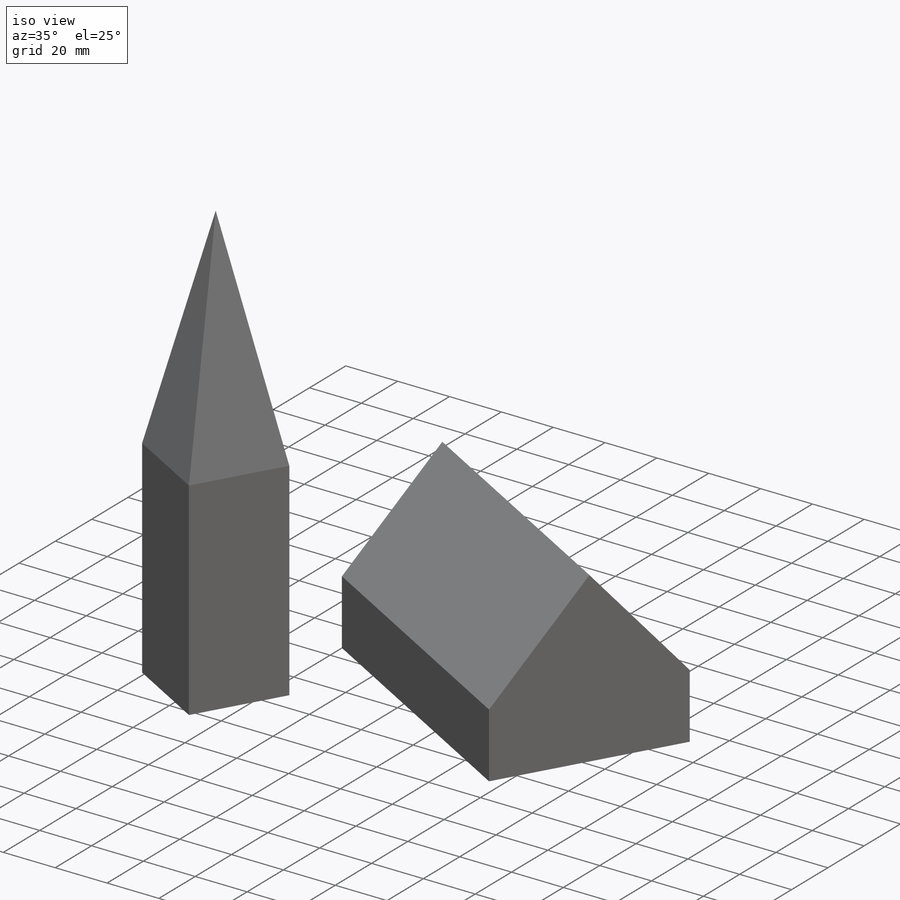
[diagram: iso view]
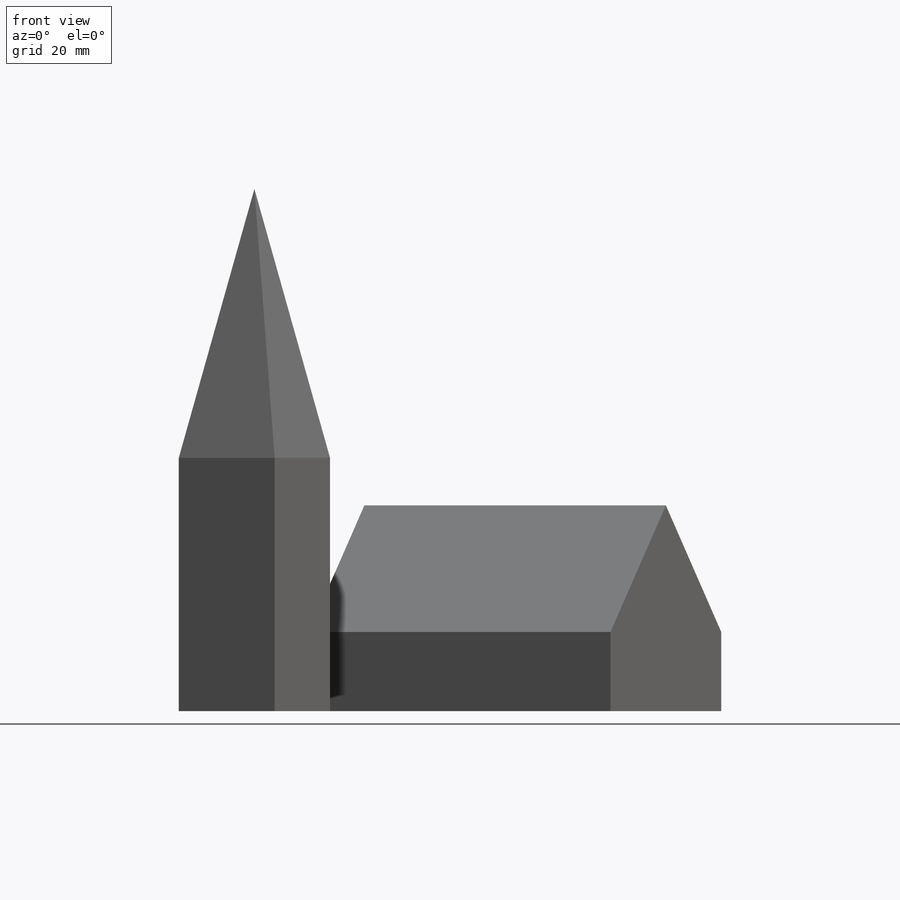
[diagram: front view]
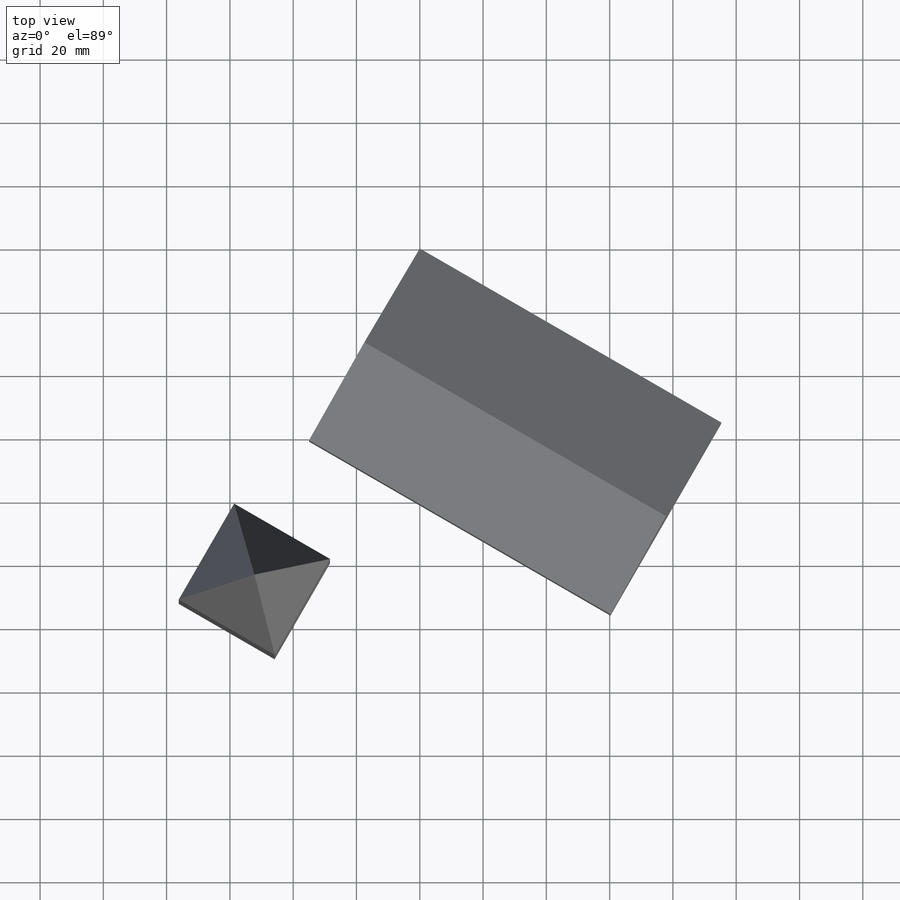
[diagram: top view]
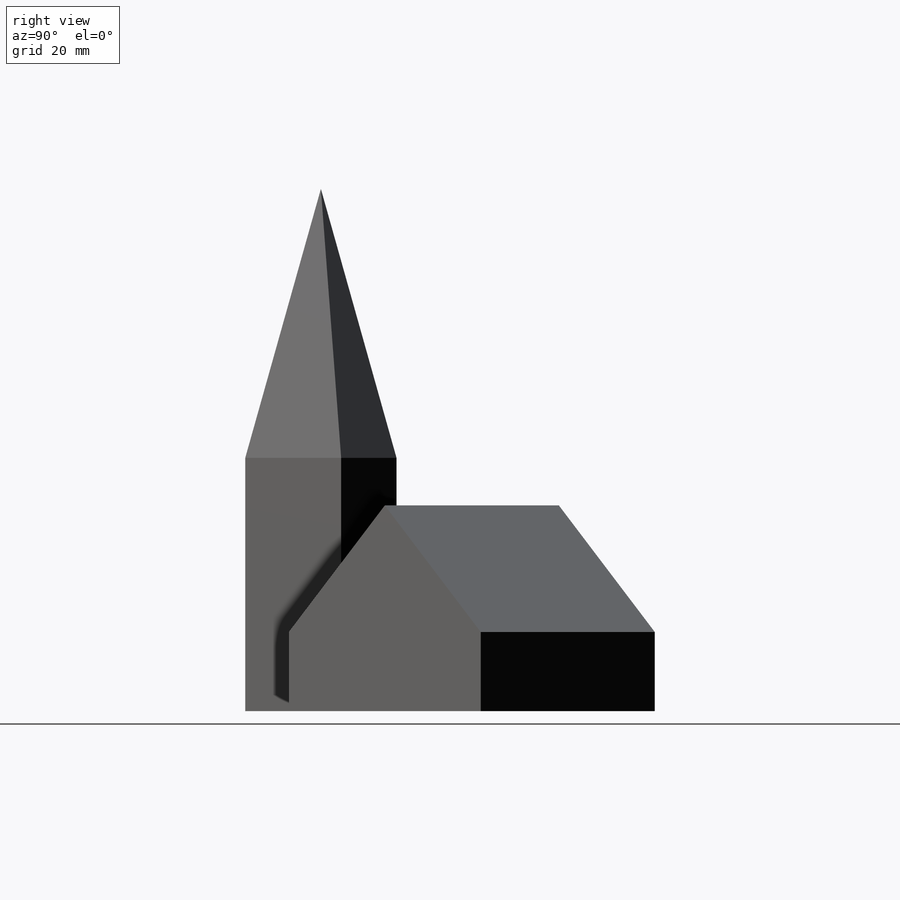
[diagram: right view]
SOLIDWORKS PART (.sldprt)
format: sldprt  version: not decoded by parser v0  size: 278,528 bytes
history: native  units: mm
features: sketch x5, extrude x3, material x1, plane x1 (+14 scaffold rows collapsed)
feature tree (24):
  scaffold x14  (default folders/planes/origin — collapsed)
  material  "Material <not specified>"
  sketch  "Sketch1"  dims[c1.D1=~32.658033mm c2.D1=60.0deg c2.D2=110.0mm c2.D3=70.0mm]
  extrude  "Extrude1"  Depth=25mm
  sketch  "Sketch2"  dims[D1=40.0mm]
  extrude  "Extrude2"  Depth=110mm
  sketch  "Sketch3"  dims[c1.D1=35.0mm c1.D2=35.0mm c2.D2=~183.690068deg c3.D2=35.0mm c4.D2=~3.690068deg c5.D2=10.0mm c5.D3=30.0mm]
  extrude  "Extrude3"  Depth=80mm
  sketch  "Sketch4"
  plane  "Plane1"
  sketch  "Sketch5"  dims[D1=85.0mm]
decode coverage: 7 of 8 modeling features carry decoded parameters
note: ~ marks probable driven/reference dimensions
note: suppression state not decoded; provenance and decode notes live in map.json
